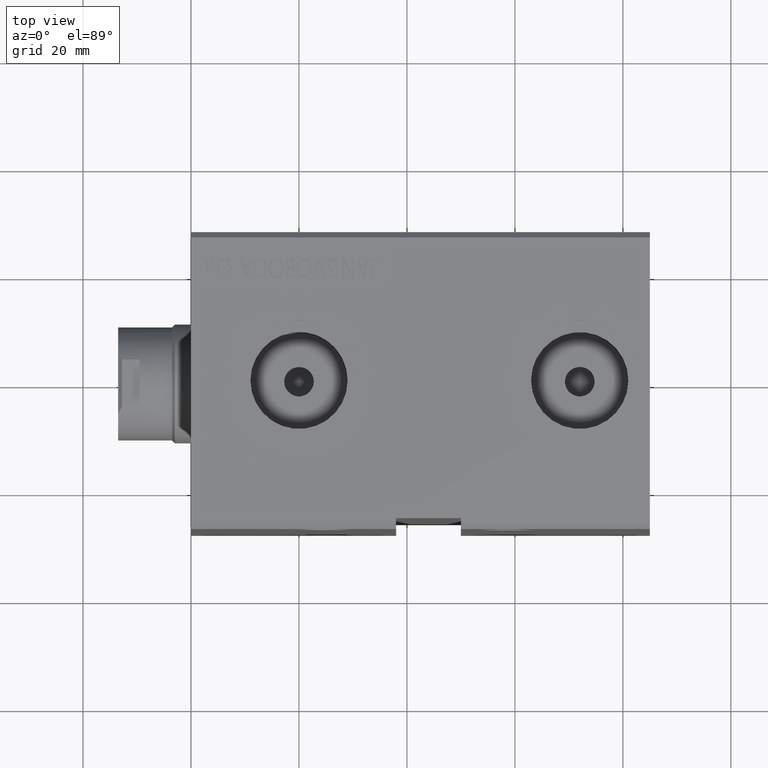
[diagram: clean part render]
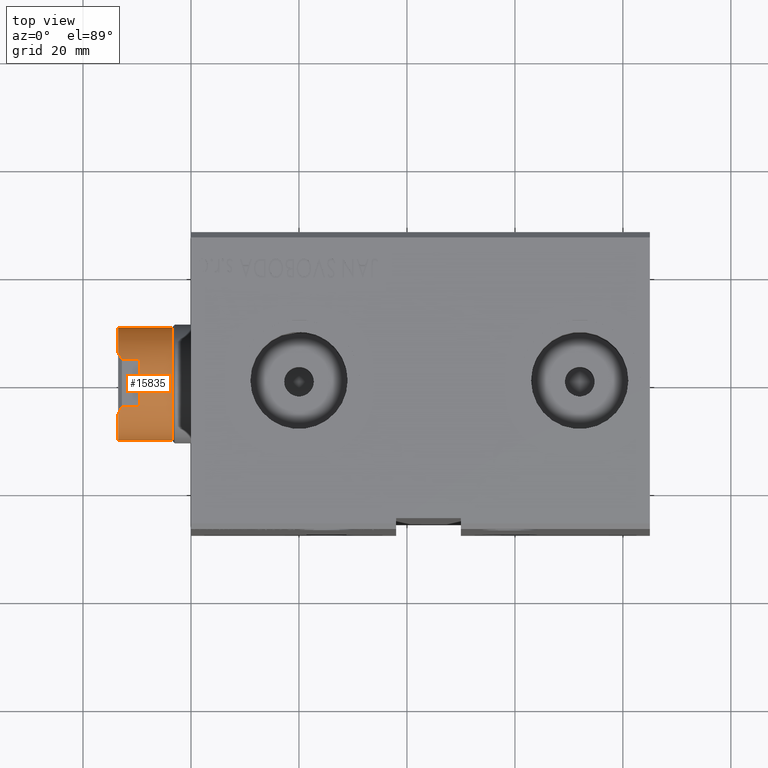
[diagram: same view with one face highlighted and labeled with its STEP entity id]
A machine part, top view. The second image highlights one B-rep face of the part: STEP entity #15835.
In plain terms, the highlighted cylindrical surface (partial cylindrical patch) has radius 10.46 mm, axis along (-1, -0, -0).
Its self-contained STEP definition (entity closure, byte-faithful):
#477 = DIRECTION ( 'NONE',  ( -0.000000000000000000, -1.781522477244710957E-16, 1.000000000000000000 ) ) ;
#491 = DIRECTION ( 'NONE',  ( -0.000000000000000000, -1.781522477244711203E-16, 1.000000000000000000 ) ) ;
#586 = DIRECTION ( 'NONE',  ( 0.000000000000000000, -1.000000000000000000, 0.000000000000000000 ) ) ;
#825 = DIRECTION ( 'NONE',  ( -0.000000000000000000, -0.000000000000000000, -1.000000000000000000 ) ) ;
#1435 = ORIENTED_EDGE ( 'NONE', *, *, #25843, .F. ) ;
#1447 = EDGE_CURVE ( 'NONE', #37613, #34946, #7025, .T. ) ;
#1653 = VERTEX_POINT ( 'NONE', #33770 ) ;
#1855 = VECTOR ( 'NONE', #1912, 1000.000000000000000 ) ;
#1912 = DIRECTION ( 'NONE',  ( -0.000000000000000000, -1.781522477244711203E-16, 1.000000000000000000 ) ) ;
#2146 = DIRECTION ( 'NONE',  ( 0.000000000000000000, -1.000000000000000000, 0.000000000000000000 ) ) ;
#2993 = LINE ( 'NONE', #33473, #10925 ) ;
#3336 = DIRECTION ( 'NONE',  ( 0.000000000000000000, -1.000000000000000000, 0.000000000000000000 ) ) ;
#3728 = AXIS2_PLACEMENT_3D ( 'NONE', #19631, #825, #5041 ) ;
#5041 = DIRECTION ( 'NONE',  ( -1.000000000000000000, 0.000000000000000000, 0.000000000000000000 ) ) ;
#5489 = CARTESIAN_POINT ( 'NONE',  ( 8.789999999999997371, 5.669876541865782826, 68.50000000000000000 ) ) ;
#5942 = CIRCLE ( 'NONE', #26838, 10.45999999999999908 ) ;
#6303 = CARTESIAN_POINT ( 'NONE',  ( 0.000000000000000000, -1.220342896912627084E-14, 68.50000000000000000 ) ) ;
#6360 = CIRCLE ( 'NONE', #3728, 10.45999999999999908 ) ;
#6688 = CARTESIAN_POINT ( 'NONE',  ( 9.500000000000000000, 4.377396486497409533, 67.79000000000000625 ) ) ;
#6744 = CIRCLE ( 'NONE', #38729, 10.45999999999999908 ) ;
#6962 = CARTESIAN_POINT ( 'NONE',  ( 9.056889589612556080, -5.256118063110215566, 68.23311041038743952 ) ) ;
#7025 = LINE ( 'NONE', #25221, #39850 ) ;
#7685 = ORIENTED_EDGE ( 'NONE', *, *, #25998, .F. ) ;
#7963 = ORIENTED_EDGE ( 'NONE', *, *, #9719, .T. ) ;
#8284 = ORIENTED_EDGE ( 'NONE', *, *, #28266, .T. ) ;
#9719 = EDGE_CURVE ( 'NONE', #19981, #37613, #17265, .T. ) ;
#9759 = CARTESIAN_POINT ( 'NONE',  ( 9.293949384395535418, 4.824575729748616482, 67.99605061560447439 ) ) ;
#9836 = CARTESIAN_POINT ( 'NONE',  ( 8.789999999999997371, -5.669876541865807695, 68.50000000000000000 ) ) ;
#9975 = ORIENTED_EDGE ( 'NONE', *, *, #10630, .F. ) ;
#10532 = LINE ( 'NONE', #26261, #35955 ) ;
#10630 = EDGE_CURVE ( 'NONE', #11160, #1653, #6744, .T. ) ;
#10925 = VECTOR ( 'NONE', #15483, 1000.000000000000000 ) ;
#11160 = VERTEX_POINT ( 'NONE', #23316 ) ;
#11899 = CARTESIAN_POINT ( 'NONE',  ( 9.500000000000000000, -4.377396486497432626, 64.50000000000000000 ) ) ;
#15483 = DIRECTION ( 'NONE',  ( 0.000000000000000000, 1.781522477244711203E-16, -1.000000000000000000 ) ) ;
#15835 = ADVANCED_FACE ( 'NONE', ( #17272 ), #17475, .T. ) ;
#15927 = DIRECTION ( 'NONE',  ( -0.000000000000000000, -1.781522477244710957E-16, 1.000000000000000000 ) ) ;
#17265 = CIRCLE ( 'NONE', #24447, 10.45999999999999908 ) ;
#17272 = FACE_OUTER_BOUND ( 'NONE', #19581, .T. ) ;
#17413 = VERTEX_POINT ( 'NONE', #39985 ) ;
#17475 = CYLINDRICAL_SURFACE ( 'NONE', #31596, 10.45999999999999908 ) ;
#17693 = CARTESIAN_POINT ( 'NONE',  ( 9.500000000000000000, 4.377396486497409533, 67.79000000000000625 ) ) ;
#18944 = CARTESIAN_POINT ( 'NONE',  ( 8.789999999999997371, 5.669876541865782826, 68.50000000000000000 ) ) ;
#19356 = CARTESIAN_POINT ( 'NONE',  ( 9.500000000000000000, -4.377396486497433514, 67.79000000000000625 ) ) ;
#19581 = EDGE_LOOP ( 'NONE', ( #7963, #32319, #7685, #31778, #30687, #8284, #32048, #40078, #9975, #1435 ) ) ;
#19631 = CARTESIAN_POINT ( 'NONE',  ( 0.000000000000000000, -1.149081997822838646E-14, 64.50000000000000000 ) ) ;
#19981 = VERTEX_POINT ( 'NONE', #32719 ) ;
#20565 = DIRECTION ( 'NONE',  ( -0.000000000000000000, -1.781522477244710957E-16, 1.000000000000000000 ) ) ;
#20778 = CARTESIAN_POINT ( 'NONE',  ( 0.000000000000000000, -1.042190649188155989E-14, 58.50000000000000000 ) ) ;
#21114 = CARTESIAN_POINT ( 'NONE',  ( 9.500000000000000000, -4.377396486497433514, 68.50000000000000000 ) ) ;
#21548 = VERTEX_POINT ( 'NONE', #19356 ) ;
#21737 = CARTESIAN_POINT ( 'NONE',  ( 0.000000000000000000, -1.220342896912627084E-14, 68.50000000000000000 ) ) ;
#21884 = CARTESIAN_POINT ( 'NONE',  ( 9.293949384395537194, -4.824575729748640462, 67.99605061560447439 ) ) ;
#23194 = DIRECTION ( 'NONE',  ( -0.000000000000000000, -1.781522477244711203E-16, 1.000000000000000000 ) ) ;
#23316 = CARTESIAN_POINT ( 'NONE',  ( 0.000000000000000000, -10.46000000000001151, 68.50000000000000000 ) ) ;
#24375 = CARTESIAN_POINT ( 'NONE',  ( 1.280980551908131330E-15, 10.45999999999998664, 68.50000000000000000 ) ) ;
#24447 = AXIS2_PLACEMENT_3D ( 'NONE', #20778, #20565, #36924 ) ;
#24834 =( BOUNDED_CURVE ( )  B_SPLINE_CURVE ( 3, ( #18944, #40419, #9759, #6688 ),
 .UNSPECIFIED., .F., .T. ) 
 B_SPLINE_CURVE_WITH_KNOTS ( ( 4, 4 ),
 ( 2.568714171481419228, 2.709811500076702462 ),
 .UNSPECIFIED. ) 
 CURVE ( )  GEOMETRIC_REPRESENTATION_ITEM ( )  RATIONAL_B_SPLINE_CURVE ( ( 1.000000000000000000, 0.9983416499762383101, 0.9983416499762383101, 1.000000000000000000 ) ) 
 REPRESENTATION_ITEM ( '' )  );
#25158 = CARTESIAN_POINT ( 'NONE',  ( 9.500000000000000000, -4.377396486497433514, 67.79000000000000625 ) ) ;
#25221 = CARTESIAN_POINT ( 'NONE',  ( 1.280980551908131330E-15, 10.45999999999998664, 68.50000000000000000 ) ) ;
#25843 = EDGE_CURVE ( 'NONE', #19981, #11160, #10532, .T. ) ;
#25998 = EDGE_CURVE ( 'NONE', #37270, #34946, #5942, .T. ) ;
#26261 = CARTESIAN_POINT ( 'NONE',  ( 0.000000000000000000, -10.46000000000001151, 68.50000000000000000 ) ) ;
#26838 = AXIS2_PLACEMENT_3D ( 'NONE', #21737, #477, #3336 ) ;
#27082 = CARTESIAN_POINT ( 'NONE',  ( 0.000000000000000000, -1.220342896912627084E-14, 68.50000000000000000 ) ) ;
#28266 = EDGE_CURVE ( 'NONE', #17413, #33274, #6360, .T. ) ;
#29912 = LINE ( 'NONE', #21114, #1855 ) ;
#29947 = DIRECTION ( 'NONE',  ( -0.000000000000000000, -1.781522477244710957E-16, 1.000000000000000000 ) ) ;
#30581 =( BOUNDED_CURVE ( )  B_SPLINE_CURVE ( 3, ( #25158, #21884, #6962, #9836 ),
 .UNSPECIFIED., .F., .F. ) 
 B_SPLINE_CURVE_WITH_KNOTS ( ( 4, 4 ),
 ( 3.573373807102883770, 3.714471135698167004 ),
 .UNSPECIFIED. ) 
 CURVE ( )  GEOMETRIC_REPRESENTATION_ITEM ( )  RATIONAL_B_SPLINE_CURVE ( ( 1.000000000000000000, 0.9983416499762383101, 0.9983416499762383101, 1.000000000000000000 ) ) 
 REPRESENTATION_ITEM ( '' )  );
#30687 = ORIENTED_EDGE ( 'NONE', *, *, #36143, .T. ) ;
#30791 = VERTEX_POINT ( 'NONE', #17693 ) ;
#31596 = AXIS2_PLACEMENT_3D ( 'NONE', #27082, #29947, #2146 ) ;
#31768 = CARTESIAN_POINT ( 'NONE',  ( 0.000000000000000000, 10.45999999999998842, 58.50000000000000000 ) ) ;
#31778 = ORIENTED_EDGE ( 'NONE', *, *, #38374, .T. ) ;
#32048 = ORIENTED_EDGE ( 'NONE', *, *, #38878, .T. ) ;
#32319 = ORIENTED_EDGE ( 'NONE', *, *, #1447, .T. ) ;
#32719 = CARTESIAN_POINT ( 'NONE',  ( 1.314046015485110459E-15, -10.46000000000000973, 58.50000000000000000 ) ) ;
#33274 = VERTEX_POINT ( 'NONE', #11899 ) ;
#33306 = EDGE_CURVE ( 'NONE', #21548, #1653, #30581, .T. ) ;
#33473 = CARTESIAN_POINT ( 'NONE',  ( 9.500000000000000000, 4.377396486497409533, 68.50000000000000000 ) ) ;
#33770 = CARTESIAN_POINT ( 'NONE',  ( 8.789999999999997371, -5.669876541865807695, 68.50000000000000000 ) ) ;
#34946 = VERTEX_POINT ( 'NONE', #24375 ) ;
#35955 = VECTOR ( 'NONE', #23194, 1000.000000000000000 ) ;
#36143 = EDGE_CURVE ( 'NONE', #30791, #17413, #2993, .T. ) ;
#36924 = DIRECTION ( 'NONE',  ( 0.000000000000000000, -1.000000000000000000, 0.000000000000000000 ) ) ;
#37270 = VERTEX_POINT ( 'NONE', #5489 ) ;
#37613 = VERTEX_POINT ( 'NONE', #31768 ) ;
#38374 = EDGE_CURVE ( 'NONE', #37270, #30791, #24834, .T. ) ;
#38729 = AXIS2_PLACEMENT_3D ( 'NONE', #6303, #15927, #586 ) ;
#38878 = EDGE_CURVE ( 'NONE', #33274, #21548, #29912, .T. ) ;
#39850 = VECTOR ( 'NONE', #491, 1000.000000000000000 ) ;
#39985 = CARTESIAN_POINT ( 'NONE',  ( 9.500000000000000000, 4.377396486497410422, 64.50000000000000000 ) ) ;
#40078 = ORIENTED_EDGE ( 'NONE', *, *, #33306, .T. ) ;
#40419 = CARTESIAN_POINT ( 'NONE',  ( 9.056889589612556080, 5.256118063110192473, 68.23311041038743952 ) ) ;